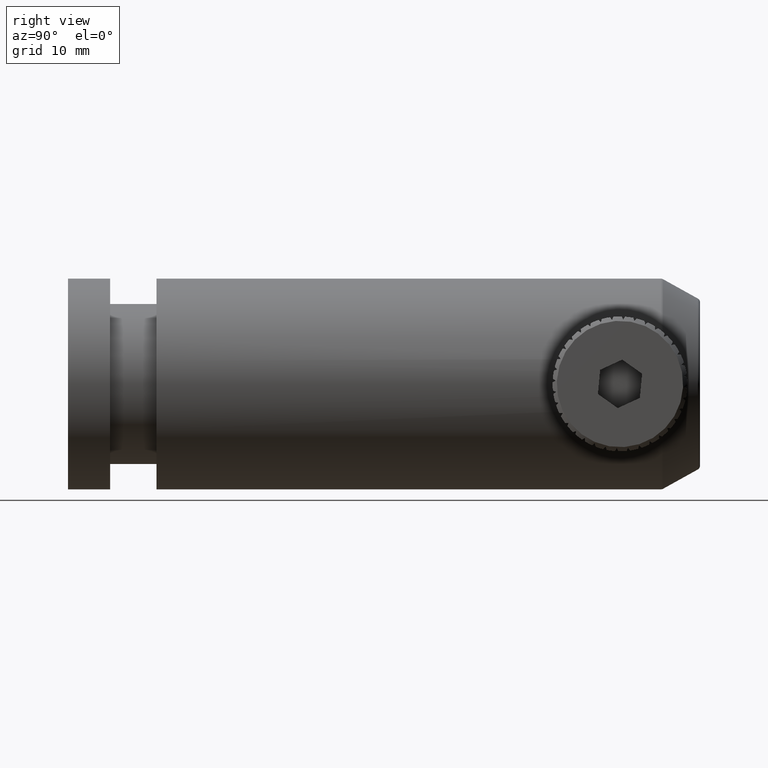
[diagram: clean part render]
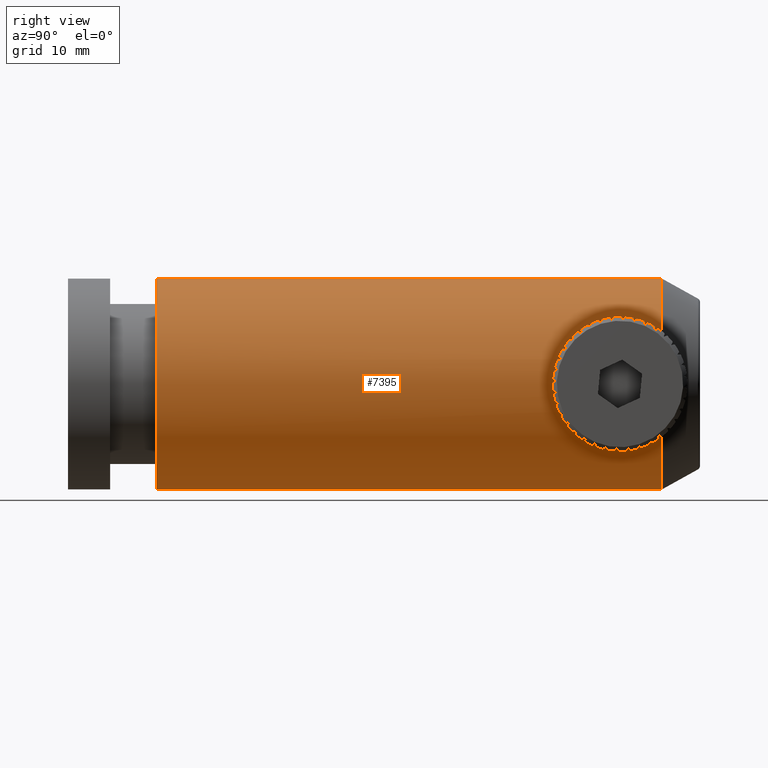
[diagram: same view with one face highlighted and labeled with its STEP entity id]
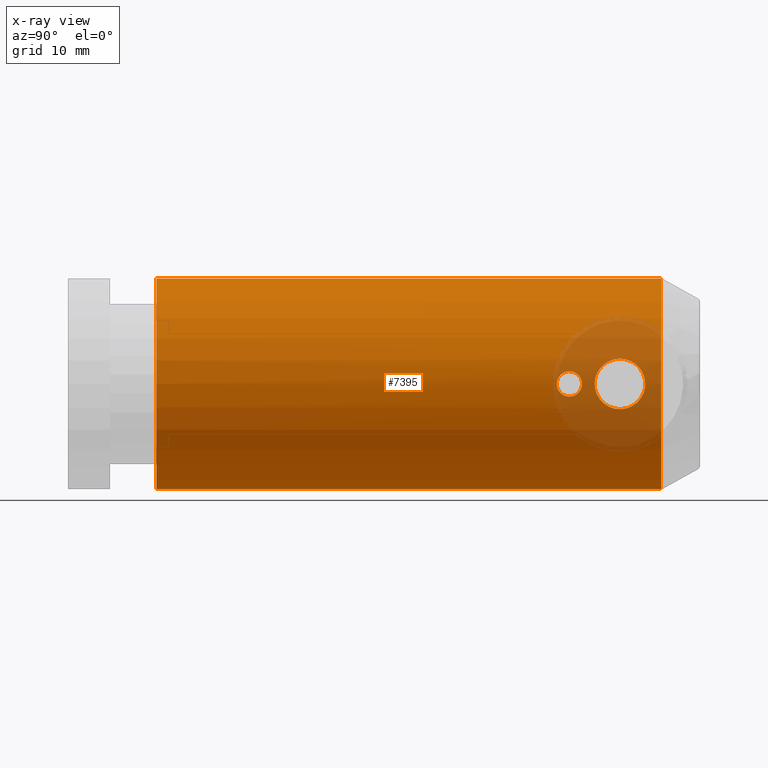
[diagram: x-ray of the same camera — body ghosted, the highlighted face saturated]
A machine part, right view. The second image highlights one B-rep face of the part: STEP entity #7395.
The next image is the same camera in x-ray: the body ghosted, the highlighted face saturated — about 9% of this face is hidden behind the body in this view.
In plain terms, the highlighted cylindrical surface (partial cylindrical patch) has radius 12.5 mm, axis along (-0, -1, -0).
Its self-contained STEP definition (entity closure, byte-faithful):
#17 = CARTESIAN_POINT ( 'NONE',  ( 9.293583048181636386, 49.17290621679919838, -0.2315008686452452724 ) ) ;
#114 = CARTESIAN_POINT ( 'NONE',  ( 9.204903389921662793, 47.88279855186691236, 1.499930399462187536 ) ) ;
#157 = EDGE_LOOP ( 'NONE', ( #7964, #4646, #1094, #8569 ) ) ;
#311 = CARTESIAN_POINT ( 'NONE',  ( 9.282776612184104437, 49.07982134121925810, -0.5671153814576943564 ) ) ;
#320 = B_SPLINE_CURVE_WITH_KNOTS ( 'NONE', 3,
 ( #4966, #7780, #17, #8774, #311, #1006, #8076, #3219, #1190, #3084, #1053, #3130, #5955, #2425 ),
 .UNSPECIFIED., .F., .F.,
 ( 4, 2, 2, 2, 2, 2, 4 ),
 ( 0.007041378278594486936, 0.007387119390436430733, 0.007732860502278373661, 0.008424342725962262121, 0.008770083837804205917, 0.009115824949646149714, 0.009807307173330037306 ),
 .UNSPECIFIED. ) ;
#363 = VERTEX_POINT ( 'NONE', #2346 ) ;
#380 = B_SPLINE_CURVE_WITH_KNOTS ( 'NONE', 3,
 ( #6953, #9124, #7592, #7781, #6261, #4220, #2741, #8336, #1994, #2694, #3349, #708, #8478, #2128, #1951, #8429, #6215, #5561, #7638, #8290, #4125, #6174, #1264, #6908, #4782, #4967, #4080, #6354, #3393, #2789, #3483, #2838, #1445, #8382 ),
 .UNSPECIFIED., .F., .F.,
 ( 4, 2, 2, 2, 2, 2, 2, 2, 2, 2, 2, 2, 2, 2, 2, 2, 4 ),
 ( 0.01397184915624163741, 0.01456003290153329646, 0.01514821664682495551, 0.01573640039211661457, 0.01632458413740827535, 0.01691276788269993614, 0.01750095162799159346, 0.01808913537328325424, 0.01867731911857491503, 0.01926550286386657582, 0.01985368660915823660, 0.02044187035444989392, 0.02103005409974155471, 0.02161823784503321549, 0.02220642159032487628, 0.02279460533561653707, 0.02338278908090819785 ),
 .UNSPECIFIED. ) ;
#518 = CARTESIAN_POINT ( 'NONE',  ( 9.294317401501471565, 50.69015654449285790, 0.1503243900348053830 ) ) ;
#604 = CARTESIAN_POINT ( 'NONE',  ( 9.296672499566858150, 50.68033200390001980, -0.04549610834033108314 ) ) ;
#638 = DIRECTION ( 'NONE',  ( 0.0000000000000000000, 0.0000000000000000000, 1.000000000000000000 ) ) ;
#699 = CARTESIAN_POINT ( 'NONE',  ( 9.072103285971895303, 55.55512266796991128, -2.354963753863604126 ) ) ;
#708 = CARTESIAN_POINT ( 'NONE',  ( 9.038241287134486157, 55.31915226777572059, 2.524436542601554478 ) ) ;
#723 = EDGE_CURVE ( 'NONE', #3800, #6816, #1287, .T. ) ;
#760 = CARTESIAN_POINT ( 'NONE',  ( 9.272798582576717408, 46.38529053181468242, 0.7527869862905794962 ) ) ;
#810 = CARTESIAN_POINT ( 'NONE',  ( 9.286184619923522732, 49.10961161749659709, 0.4838425681154251423 ) ) ;
#822 = CARTESIAN_POINT ( 'NONE',  ( 9.281256597127029551, 46.29421120716751403, -0.6445237261768650416 ) ) ;
#853 = CARTESIAN_POINT ( 'NONE',  ( 9.295221331074591475, 49.18638794039016915, -2.591424934095057927E-15 ) ) ;
#884 = CARTESIAN_POINT ( 'NONE',  ( 9.294317401501469789, 56.68261933628746618, -0.1503243900347979167 ) ) ;
#901 = CARTESIAN_POINT ( 'NONE',  ( -3.204778668925409857, 58.55682492629137670, 12.50000000000000000 ) ) ;
#1006 = CARTESIAN_POINT ( 'NONE',  ( 9.266172060751253881, 48.92537586492482404, -0.8763646025401319317 ) ) ;
#1053 = CARTESIAN_POINT ( 'NONE',  ( 9.210382158728439350, 48.07280620827266659, -1.454040343290209369 ) ) ;
#1088 = VECTOR ( 'NONE', #2788, 1000.000000000000000 ) ;
#1094 = ORIENTED_EDGE ( 'NONE', *, *, #723, .T. ) ;
#1190 = CARTESIAN_POINT ( 'NONE',  ( 9.224673907753938806, 48.39517371642906340, -1.326981502222171372 ) ) ;
#1256 = CARTESIAN_POINT ( 'NONE',  ( 8.987261766808185115, 54.88203056386281986, -2.758393945155287241 ) ) ;
#1257 = DIRECTION ( 'NONE',  ( -0.0000000000000000000, -1.000000000000000000, -0.0000000000000000000 ) ) ;
#1264 = CARTESIAN_POINT ( 'NONE',  ( 9.006458467859674855, 52.31092582387454115, 2.673240243682316830 ) ) ;
#1287 = CIRCLE ( 'NONE', #8826, 12.50000000000000000 ) ;
#1330 = CARTESIAN_POINT ( 'NONE',  ( -3.204778668925409857, -1.313612059609841731, -7.703719777548943412E-31 ) ) ;
#1342 = CARTESIAN_POINT ( 'NONE',  ( 8.956655324027829934, 54.51354455280414868, -2.890347795382727458 ) ) ;
#1368 = CARTESIAN_POINT ( 'NONE',  ( 9.295221331074591475, 46.18638794039016915, -0.3216290048744032681 ) ) ;
#1388 = CARTESIAN_POINT ( 'NONE',  ( 9.006219876497592480, 55.05995332823618327, -2.674373434860419341 ) ) ;
#1397 = CARTESIAN_POINT ( 'NONE',  ( -3.204778668925409857, 63.18638794039016204, -12.50000000000000000 ) ) ;
#1437 = FACE_BOUND ( 'NONE', #8225, .T. ) ;
#1445 = CARTESIAN_POINT ( 'NONE',  ( 9.291963082277030495, 50.69997783606838482, 0.3460801297384475950 ) ) ;
#1543 = CARTESIAN_POINT ( 'NONE',  ( 9.210627896731342190, 47.29706588798140388, 1.451913378064813243 ) ) ;
#1579 = CARTESIAN_POINT ( 'NONE',  ( 9.294317401501469789, 56.68261933628746618, -0.1503243900347979167 ) ) ;
#1589 = CARTESIAN_POINT ( 'NONE',  ( 9.256015928360445955, 48.81605618770789334, 0.9916718122892747012 ) ) ;
#1676 = CARTESIAN_POINT ( 'NONE',  ( 9.238294905526107215, 46.77170442606306722, 1.192851831215622216 ) ) ;
#1941 = CARTESIAN_POINT ( 'NONE',  ( 8.963535095444740364, 52.76235200080200372, -2.860868974183078617 ) ) ;
#1942 = CARTESIAN_POINT ( 'NONE',  ( -3.204778668925409857, 63.18638794039016204, -7.703719777548943412E-31 ) ) ;
#1951 = CARTESIAN_POINT ( 'NONE',  ( 8.963613499397281359, 54.61184800982137943, 2.860543439079100914 ) ) ;
#1986 = CARTESIAN_POINT ( 'NONE',  ( 9.269307545164291895, 50.79554538581862744, -0.8255565456681706049 ) ) ;
#1994 = CARTESIAN_POINT ( 'NONE',  ( 9.155509261209822114, 56.04080950553845497, 1.869420020548344441 ) ) ;
#2030 = CARTESIAN_POINT ( 'NONE',  ( 8.940587165036291140, 53.14242673749530610, -2.956775256058381984 ) ) ;
#2073 = CARTESIAN_POINT ( 'NONE',  ( 9.143823657239682490, 55.97791158257231103, -1.946076008421851133 ) ) ;
#2128 = CARTESIAN_POINT ( 'NONE',  ( 8.979399087918256583, 54.79764742531337163, 2.793415339617836057 ) ) ;
#2131 = CARTESIAN_POINT ( 'NONE',  ( 9.295221331074591475, 46.18638794039016915, 0.09793511306896243718 ) ) ;
#2207 = VERTEX_POINT ( 'NONE', #901 ) ;
#2273 = CARTESIAN_POINT ( 'NONE',  ( 9.256076861309695758, 46.55599644150231597, 0.9909641439925862549 ) ) ;
#2318 = CARTESIAN_POINT ( 'NONE',  ( 9.222341716886040430, 47.02189370267446833, 1.348373010837417230 ) ) ;
#2346 = CARTESIAN_POINT ( 'NONE',  ( 9.295221331074591475, 49.18638794039016915, -2.591424934095057927E-15 ) ) ;
#2425 = CARTESIAN_POINT ( 'NONE',  ( 9.211884100376778406, 47.26983743135784266, -1.441001621589983683 ) ) ;
#2504 = B_SPLINE_CURVE_WITH_KNOTS ( 'NONE', 3,
 ( #7786, #2131, #4972, #4270, #7100, #6176, #760, #6537, #2273, #7928, #1676, #6583, #2318, #7280, #1543, #7148, #4367, #114, #6493, #7971, #7239, #1589, #4414, #7195, #7830, #810, #5110, #8013, #8619, #853 ),
 .UNSPECIFIED., .F., .F.,
 ( 4, 2, 2, 2, 2, 2, 2, 2, 2, 2, 2, 2, 2, 2, 4 ),
 ( 0.002347503659618232347, 0.002640870823304248150, 0.002934237986990263954, 0.003227605150676280191, 0.003520972314362295994, 0.003814339478048311798, 0.004107706641734328035, 0.004401073805420343404, 0.004694440969106359642, 0.005281175296478391248, 0.005867909623850423723, 0.006161276787536439092, 0.006454643951222455329, 0.006748011114908470699, 0.007041378278594486936 ),
 .UNSPECIFIED. ) ;
#2608 = CARTESIAN_POINT ( 'NONE',  ( -3.204778668925408081, 63.18638794039016204, 12.50000000000000000 ) ) ;
#2639 = CARTESIAN_POINT ( 'NONE',  ( 9.178752845103215208, 51.21423808227556407, -1.710752348948676671 ) ) ;
#2694 = CARTESIAN_POINT ( 'NONE',  ( 9.108316663677976877, 55.77897004400472980, 2.158502318575139522 ) ) ;
#2741 = CARTESIAN_POINT ( 'NONE',  ( 9.220654297667083554, 56.36053569744961322, 1.373770145627444705 ) ) ;
#2757 = CARTESIAN_POINT ( 'NONE',  ( 9.222296484728833121, 46.95946194910450799, -1.351281344258758343 ) ) ;
#2780 = CARTESIAN_POINT ( 'NONE',  ( 9.280586447248992954, 50.74782798200572387, -0.6355257212956733071 ) ) ;
#2788 = DIRECTION ( 'NONE',  ( -0.0000000000000000000, -1.000000000000000000, -0.0000000000000000000 ) ) ;
#2789 = CARTESIAN_POINT ( 'NONE',  ( 9.247131624819070694, 50.89233272810288611, 1.109677973331048451 ) ) ;
#2838 = CARTESIAN_POINT ( 'NONE',  ( 9.284975426717135605, 50.72899438771106873, 0.5413697073677384841 ) ) ;
#3004 = VERTEX_POINT ( 'NONE', #5786 ) ;
#3043 = VERTEX_POINT ( 'NONE', #1579 ) ;
#3084 = CARTESIAN_POINT ( 'NONE',  ( 9.214435310756540431, 48.18434556260479695, -1.419610999546437879 ) ) ;
#3097 = DIRECTION ( 'NONE',  ( 0.0000000000000000000, -1.000000000000000000, 0.0000000000000000000 ) ) ;
#3130 = CARTESIAN_POINT ( 'NONE',  ( 9.202857803768232259, 47.72934889345495435, -1.517354258960988300 ) ) ;
#3153 = EDGE_LOOP ( 'NONE', ( #7424, #3212 ) ) ;
#3212 = ORIENTED_EDGE ( 'NONE', *, *, #6029, .F. ) ;
#3219 = CARTESIAN_POINT ( 'NONE',  ( 9.230981123741839767, 48.49668839791579700, -1.267577455390994423 ) ) ;
#3339 = CARTESIAN_POINT ( 'NONE',  ( 9.294355723047422302, 50.68986443915846252, -0.2446926194533816101 ) ) ;
#3349 = CARTESIAN_POINT ( 'NONE',  ( 9.084323501110343813, 55.63482676413583761, 2.289603755352767056 ) ) ;
#3393 = CARTESIAN_POINT ( 'NONE',  ( 9.210636211042023902, 51.05975488501935189, 1.462507615788432691 ) ) ;
#3483 = CARTESIAN_POINT ( 'NONE',  ( 9.262389273746826746, 50.82588173228599970, 0.9256144007527375983 ) ) ;
#3519 = CARTESIAN_POINT ( 'NONE',  ( 9.210371105925347024, 56.31178294326047507, -1.464853702197306928 ) ) ;
#3656 = CARTESIAN_POINT ( 'NONE',  ( 9.284891683818710106, 56.64341841251680876, -0.5425389761491068441 ) ) ;
#3800 = VERTEX_POINT ( 'NONE', #8368 ) ;
#4073 = DIRECTION ( 'NONE',  ( 0.0000000000000000000, 0.0000000000000000000, -1.000000000000000000 ) ) ;
#4080 = CARTESIAN_POINT ( 'NONE',  ( 9.143639874171054061, 51.39584749465429780, 1.947245909389654361 ) ) ;
#4114 = CARTESIAN_POINT ( 'NONE',  ( 8.930753603847064070, 53.92968956008569847, -2.996621087949511431 ) ) ;
#4125 = CARTESIAN_POINT ( 'NONE',  ( 8.956566280400332758, 52.86008858570204438, 2.890742176345408421 ) ) ;
#4161 = CARTESIAN_POINT ( 'NONE',  ( 9.048918969029715598, 55.39849255191163024, -2.471366614442850995 ) ) ;
#4169 = LINE ( 'NONE', #1397, #1088 ) ;
#4220 = CARTESIAN_POINT ( 'NONE',  ( 9.239146828008568235, 56.44418935556494432, 1.197219804623971706 ) ) ;
#4258 = FACE_BOUND ( 'NONE', #3153, .T. ) ;
#4270 = CARTESIAN_POINT ( 'NONE',  ( 9.289511083272921965, 46.23461653781354386, 0.3898543741815269081 ) ) ;
#4287 = CARTESIAN_POINT ( 'NONE',  ( 9.295221331074591475, 46.18638794039016204, -2.570041990927106298E-15 ) ) ;
#4367 = CARTESIAN_POINT ( 'NONE',  ( 9.204890787759410387, 47.58898103183822315, 1.500034658616001826 ) ) ;
#4414 = CARTESIAN_POINT ( 'NONE',  ( 9.261988621079840556, 48.87937448569741861, 0.9145375385982730254 ) ) ;
#4646 = ORIENTED_EDGE ( 'NONE', *, *, #7564, .T. ) ;
#4782 = CARTESIAN_POINT ( 'NONE',  ( 9.072293204240910569, 51.81638427916897172, 2.353999057743985990 ) ) ;
#4844 = CARTESIAN_POINT ( 'NONE',  ( 9.211884100376778406, 47.26983743135784266, -1.441001621589983683 ) ) ;
#4859 = CARTESIAN_POINT ( 'NONE',  ( 8.928383200932501040, 53.73380700890465533, -3.006074617822043660 ) ) ;
#4906 = CARTESIAN_POINT ( 'NONE',  ( 8.933214706829202711, 53.34067881735800398, -2.986506048583369655 ) ) ;
#4966 = CARTESIAN_POINT ( 'NONE',  ( 9.295221331074591475, 49.18638794039016915, -2.591424934095057927E-15 ) ) ;
#4967 = CARTESIAN_POINT ( 'NONE',  ( 9.119747313233959929, 51.52667485782329493, 2.091378650036793019 ) ) ;
#4972 = CARTESIAN_POINT ( 'NONE',  ( 9.294032799877733453, 46.19620274178700470, 0.1974201415048865427 ) ) ;
#5110 = CARTESIAN_POINT ( 'NONE',  ( 9.289549224810368599, 49.13848588428545838, 0.3885534735353254887 ) ) ;
#5180 = CARTESIAN_POINT ( 'NONE',  ( -3.204778668925409857, 58.55682492629137670, -7.703719777548943412E-31 ) ) ;
#5217 = AXIS2_PLACEMENT_3D ( 'NONE', #5180, #3097, #7443 ) ;
#5236 = EDGE_CURVE ( 'NONE', #6524, #6816, #4169, .T. ) ;
#5423 = EDGE_CURVE ( 'NONE', #363, #8973, #320, .T. ) ;
#5461 = CARTESIAN_POINT ( 'NONE',  ( 9.155808941128420031, 51.33033224297702901, -1.867543453747922300 ) ) ;
#5462 = FACE_OUTER_BOUND ( 'NONE', #157, .T. ) ;
#5561 = CARTESIAN_POINT ( 'NONE',  ( 8.928370703639011197, 53.63817536396551588, 3.006125263652418944 ) ) ;
#5597 = CARTESIAN_POINT ( 'NONE',  ( 9.035394134874797700, 52.04405347736306453, -2.541287842386536600 ) ) ;
#5762 = EDGE_CURVE ( 'NONE', #7767, #363, #2504, .T. ) ;
#5786 = CARTESIAN_POINT ( 'NONE',  ( 9.294317401501471565, 50.69015654449285790, 0.1503243900348053830 ) ) ;
#5791 = ORIENTED_EDGE ( 'NONE', *, *, #6364, .T. ) ;
#5955 = CARTESIAN_POINT ( 'NONE',  ( 9.204410963603709916, 47.49259893837328406, -1.505395316746054313 ) ) ;
#6028 = B_SPLINE_CURVE_WITH_KNOTS ( 'NONE', 3,
 ( #6789, #2757, #9094, #822, #1368, #8445 ),
 .UNSPECIFIED., .F., .F.,
 ( 4, 2, 4 ),
 ( 0.0004206076575129501531, 0.001384055658565591304, 0.002347503659618232347 ),
 .UNSPECIFIED. ) ;
#6029 = EDGE_CURVE ( 'NONE', #3004, #3043, #6799, .T. ) ;
#6082 = VECTOR ( 'NONE', #7430, 1000.000000000000000 ) ;
#6096 = CIRCLE ( 'NONE', #5217, 12.50000000000000000 ) ;
#6174 = CARTESIAN_POINT ( 'NONE',  ( 8.987546613366731663, 52.48753205401870048, 2.757155330657441450 ) ) ;
#6176 = CARTESIAN_POINT ( 'NONE',  ( 9.277846000333326515, 46.33830834894916961, 0.6650959754764680376 ) ) ;
#6215 = CARTESIAN_POINT ( 'NONE',  ( 8.933231354412489722, 54.03322807967128227, 2.986438593220740234 ) ) ;
#6261 = CARTESIAN_POINT ( 'NONE',  ( 9.269266366900772880, 56.57706025459604859, 0.8263277061840891280 ) ) ;
#6344 = CARTESIAN_POINT ( 'NONE',  ( 9.247075757546879160, 56.48020855867926571, -1.110433087925722706 ) ) ;
#6354 = CARTESIAN_POINT ( 'NONE',  ( 9.189113828419737118, 51.16216404901054915, 1.632983744981860497 ) ) ;
#6364 = EDGE_CURVE ( 'NONE', #8973, #7767, #6028, .T. ) ;
#6439 = CARTESIAN_POINT ( 'NONE',  ( 9.291933548671277521, 56.67267484215287965, -0.3485357749967626373 ) ) ;
#6493 = CARTESIAN_POINT ( 'NONE',  ( 9.209836228901384203, 48.08032364792371283, 1.460482334706510565 ) ) ;
#6523 = AXIS2_PLACEMENT_3D ( 'NONE', #1942, #1257, #4073 ) ;
#6524 = VERTEX_POINT ( 'NONE', #8541 ) ;
#6537 = CARTESIAN_POINT ( 'NONE',  ( 9.261939773420683863, 46.49391608741807858, 0.9151795415106104281 ) ) ;
#6583 = CARTESIAN_POINT ( 'NONE',  ( 9.227410400799064050, 46.93413065890674574, 1.301403244606147203 ) ) ;
#6789 = CARTESIAN_POINT ( 'NONE',  ( 9.211884100376778406, 47.26983743135784266, -1.441001621589983683 ) ) ;
#6799 = B_SPLINE_CURVE_WITH_KNOTS ( 'NONE', 3,
 ( #518, #604, #3339, #2780, #1986, #8975, #8374, #2639, #5461, #7629, #5597, #8281, #1941, #2030, #4906, #4859, #4114, #7675, #1342, #1256, #1388, #4161, #699, #8421, #2073, #7721, #3519, #6344, #7226, #3656, #6439, #884 ),
 .UNSPECIFIED., .F., .F.,
 ( 4, 2, 2, 2, 2, 2, 2, 2, 2, 2, 2, 2, 2, 2, 2, 4 ),
 ( 0.004557795964153310911, 0.005146174288658842376, 0.005734552613164372974, 0.006322930937669904439, 0.006911309262175435036, 0.008088065911186484089, 0.008676444235691999074, 0.009264822560197514059, 0.009853200884703029044, 0.01044157920920854576, 0.01102995753371406248, 0.01161833585821957573, 0.01220671418272509245, 0.01279509250723060744, 0.01338347083173612243, 0.01397184915624163741 ),
 .UNSPECIFIED. ) ;
#6816 = VERTEX_POINT ( 'NONE', #6957 ) ;
#6908 = CARTESIAN_POINT ( 'NONE',  ( 9.048692332306377040, 51.97608527676632661, 2.472442968647312167 ) ) ;
#6953 = CARTESIAN_POINT ( 'NONE',  ( 9.294317401501469789, 56.68261933628746618, -0.1503243900347979167 ) ) ;
#6957 = CARTESIAN_POINT ( 'NONE',  ( -3.204778668925409857, -1.313612059609841731, -12.50000000000000000 ) ) ;
#7025 = DIRECTION ( 'NONE',  ( 0.0000000000000000000, 1.000000000000000000, 0.0000000000000000000 ) ) ;
#7036 = ORIENTED_EDGE ( 'NONE', *, *, #5762, .T. ) ;
#7089 = CYLINDRICAL_SURFACE ( 'NONE', #6523, 12.50000000000000000 ) ;
#7100 = CARTESIAN_POINT ( 'NONE',  ( 9.286202109542385230, 46.26301140576386217, 0.4833947477268359938 ) ) ;
#7148 = CARTESIAN_POINT ( 'NONE',  ( 9.206084228357674704, 47.48948866386319168, 1.490253264649502363 ) ) ;
#7195 = CARTESIAN_POINT ( 'NONE',  ( 9.272870988639768441, 48.98818332026971234, 0.7516146590599518396 ) ) ;
#7226 = CARTESIAN_POINT ( 'NONE',  ( 9.262588171472192045, 56.54775118645237342, -0.9224847574950815199 ) ) ;
#7239 = CARTESIAN_POINT ( 'NONE',  ( 9.238349584649908408, 48.60857780583142329, 1.199090981212600715 ) ) ;
#7280 = CARTESIAN_POINT ( 'NONE',  ( 9.213953469071794800, 47.20354280597185692, 1.423559954649153747 ) ) ;
#7395 = ADVANCED_FACE ( 'NONE', ( #1437, #4258, #5462 ), #7089, .T. ) ;
#7424 = ORIENTED_EDGE ( 'NONE', *, *, #7862, .F. ) ;
#7430 = DIRECTION ( 'NONE',  ( -0.0000000000000000000, -1.000000000000000000, -0.0000000000000000000 ) ) ;
#7443 = DIRECTION ( 'NONE',  ( 0.0000000000000000000, 0.0000000000000000000, 1.000000000000000000 ) ) ;
#7564 = EDGE_CURVE ( 'NONE', #2207, #3800, #8815, .T. ) ;
#7592 = CARTESIAN_POINT ( 'NONE',  ( 9.294319440933245247, 56.68275750706534666, 0.2453308062108574550 ) ) ;
#7629 = CARTESIAN_POINT ( 'NONE',  ( 9.084389525700474977, 51.72650415562356585, -2.305151525173001037 ) ) ;
#7638 = CARTESIAN_POINT ( 'NONE',  ( 8.930857570981617144, 53.43902110055868349, 2.996199808378078977 ) ) ;
#7675 = CARTESIAN_POINT ( 'NONE',  ( 8.944851683900211015, 54.32008332852687715, -2.938939226650399306 ) ) ;
#7721 = CARTESIAN_POINT ( 'NONE',  ( 9.189254758687964042, 56.21129700760575076, -1.631908893145495698 ) ) ;
#7767 = VERTEX_POINT ( 'NONE', #4287 ) ;
#7780 = CARTESIAN_POINT ( 'NONE',  ( 9.295221331074595028, 49.18638794039017625, -0.1169038373374753498 ) ) ;
#7781 = CARTESIAN_POINT ( 'NONE',  ( 9.280685087491706398, 56.62536433244069656, 0.6331157489297157825 ) ) ;
#7786 = CARTESIAN_POINT ( 'NONE',  ( 9.295221331074591475, 46.18638794039016204, -2.570041990927106298E-15 ) ) ;
#7830 = CARTESIAN_POINT ( 'NONE',  ( 9.277824207197033601, 49.03426638991182784, 0.6655020293823492583 ) ) ;
#7862 = EDGE_CURVE ( 'NONE', #3043, #3004, #380, .T. ) ;
#7928 = CARTESIAN_POINT ( 'NONE',  ( 9.244157566521334246, 46.69599519527032783, 1.130892163670291550 ) ) ;
#7964 = ORIENTED_EDGE ( 'NONE', *, *, #8690, .T. ) ;
#7971 = CARTESIAN_POINT ( 'NONE',  ( 9.226532754516792778, 48.44138859398692176, 1.310789077131867764 ) ) ;
#8013 = CARTESIAN_POINT ( 'NONE',  ( 9.294041171111313560, 49.17664171615341218, 0.1967382125686957250 ) ) ;
#8076 = CARTESIAN_POINT ( 'NONE',  ( 9.251055916611338859, 48.77343718694746855, -1.059094746982647495 ) ) ;
#8225 = EDGE_LOOP ( 'NONE', ( #7036, #8647, #5791 ) ) ;
#8281 = CARTESIAN_POINT ( 'NONE',  ( 8.979085875243946191, 52.57827545239257461, -2.794805594405599170 ) ) ;
#8290 = CARTESIAN_POINT ( 'NONE',  ( 8.944943754261728941, 53.05134592083577161, 2.938558367392642978 ) ) ;
#8336 = CARTESIAN_POINT ( 'NONE',  ( 9.178917836072317371, 56.15936609379050992, 1.709587579624949782 ) ) ;
#8368 = CARTESIAN_POINT ( 'NONE',  ( -3.204778668925408081, -1.313612059609841731, 12.50000000000000000 ) ) ;
#8374 = CARTESIAN_POINT ( 'NONE',  ( 9.220454222793328825, 51.01317179209890185, -1.375541327959403093 ) ) ;
#8382 = CARTESIAN_POINT ( 'NONE',  ( 9.294317401501471565, 50.69015654449285790, 0.1503243900348053830 ) ) ;
#8421 = CARTESIAN_POINT ( 'NONE',  ( 9.119426567725831489, 55.84425115725110089, -2.093239140994768377 ) ) ;
#8429 = CARTESIAN_POINT ( 'NONE',  ( 8.940450512637539759, 54.22795995841075722, 2.957344223499728475 ) ) ;
#8445 = CARTESIAN_POINT ( 'NONE',  ( 9.295221331074591475, 46.18638794039016204, -2.570041990927106298E-15 ) ) ;
#8478 = CARTESIAN_POINT ( 'NONE',  ( 9.016585558009934331, 55.15010020715669725, 2.625949980970922581 ) ) ;
#8541 = CARTESIAN_POINT ( 'NONE',  ( -3.204778668925408081, 58.55682492629137670, -12.50000000000000000 ) ) ;
#8569 = ORIENTED_EDGE ( 'NONE', *, *, #5236, .F. ) ;
#8619 = CARTESIAN_POINT ( 'NONE',  ( 9.295221331074593252, 49.18638794039017625, 0.09919487734910495402 ) ) ;
#8647 = ORIENTED_EDGE ( 'NONE', *, *, #5423, .T. ) ;
#8690 = EDGE_CURVE ( 'NONE', #6524, #2207, #6096, .T. ) ;
#8774 = CARTESIAN_POINT ( 'NONE',  ( 9.287397637651093163, 49.11997081174518343, -0.4562558374849772780 ) ) ;
#8815 = LINE ( 'NONE', #2608, #6082 ) ;
#8826 = AXIS2_PLACEMENT_3D ( 'NONE', #1330, #7025, #638 ) ;
#8973 = VERTEX_POINT ( 'NONE', #4844 ) ;
#8975 = CARTESIAN_POINT ( 'NONE',  ( 9.239337903298412868, 50.92773227831954586, -1.195128956867368197 ) ) ;
#9094 = CARTESIAN_POINT ( 'NONE',  ( 9.244055665559415047, 46.68112395572271112, -1.158883605571284336 ) ) ;
#9124 = CARTESIAN_POINT ( 'NONE',  ( 9.296700465981396988, 56.69256054173555270, 0.04782144557930737006 ) ) ;